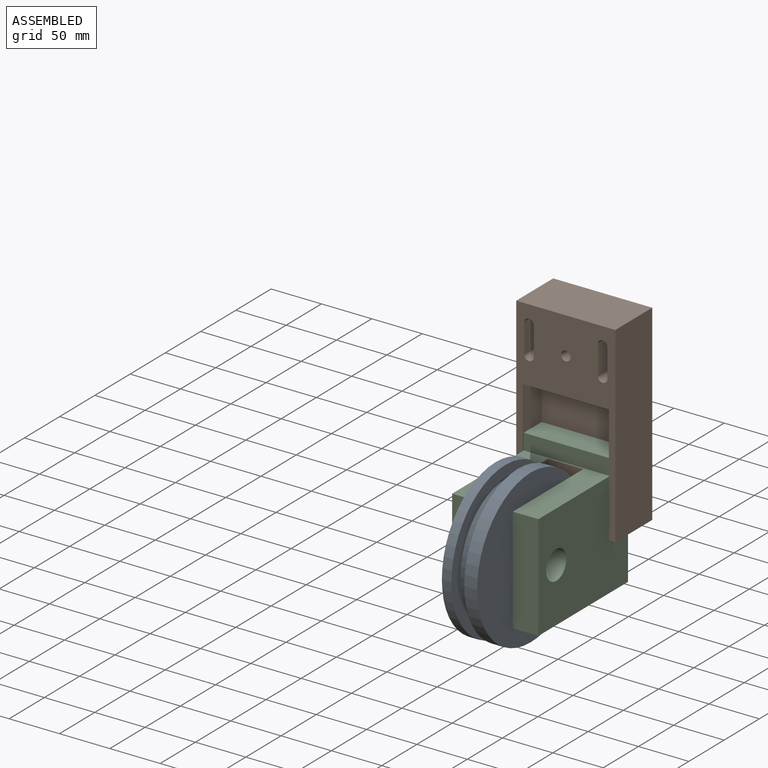
[diagram: assembled view]
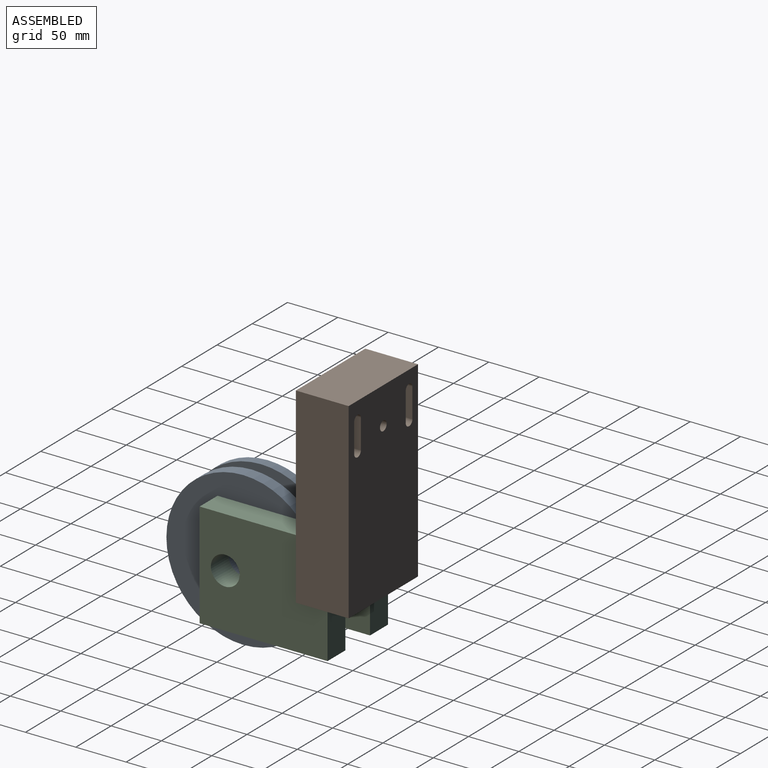
[diagram: assembled view, second angle]
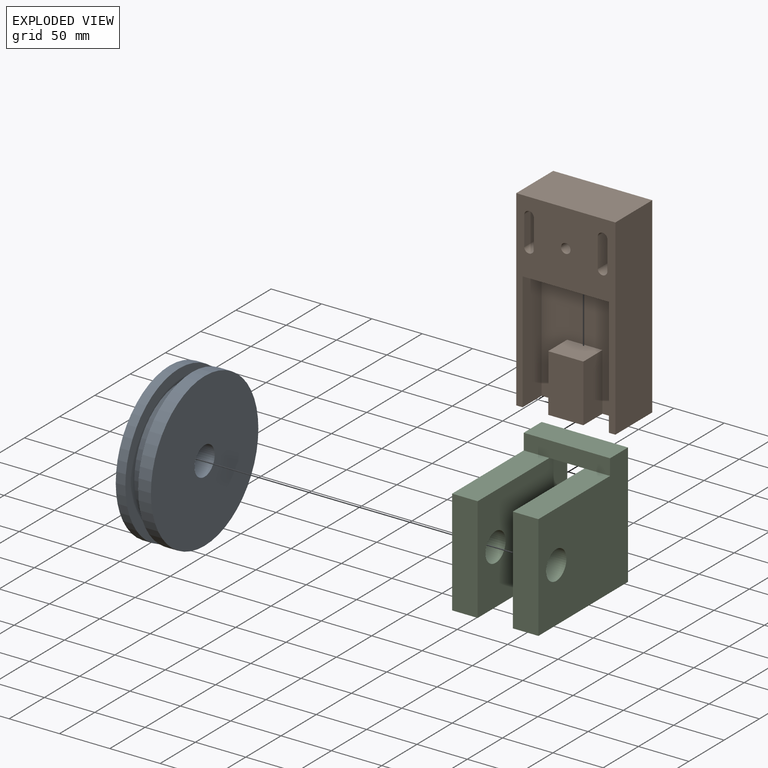
[diagram: exploded view]
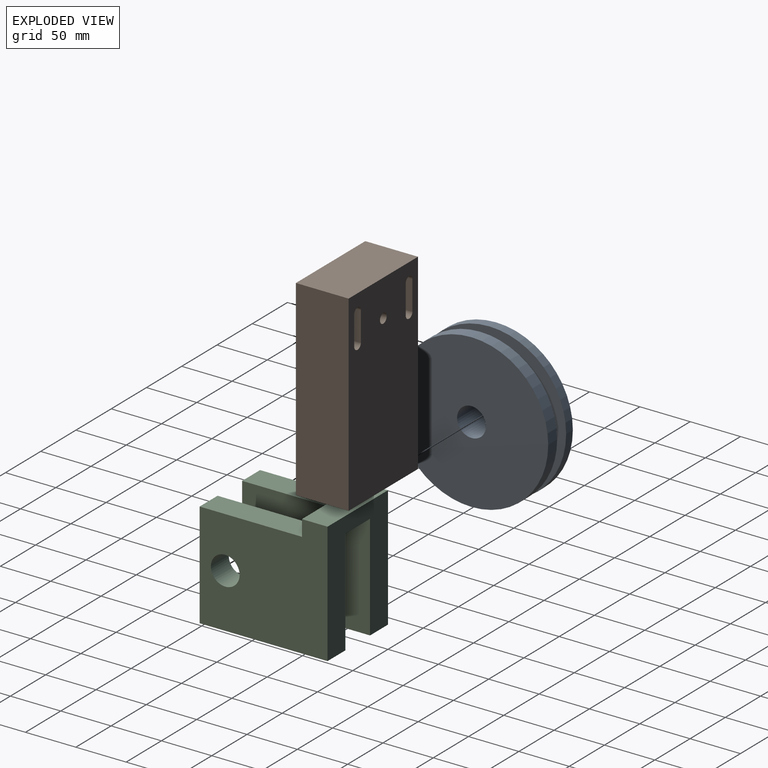
[diagram: exploded view, second angle]
ASSEMBLY  parts=3 mates=2
PART A: 8 faces, bbox 152.4x34.9x152.4 mm
  f0: cylinder r=76.2mm len=152.4mm, axis (0,1,0), area 6080.5mm2, adj f1,f2
  f1: plane 152.4x152.4mm, normal (0,-1,0), area 5573.8mm2, adj f0,f3
  f2: plane 152.4x152.4mm, normal (0,1,0), area 17600.2mm2, adj f0,f7
  f3: cylinder r=63.5mm len=127mm, axis (0,1,0), area 5067.1mm2, adj f1,f6
  f4: cylinder r=76.2mm len=152.4mm, axis (0,1,0), area 4560.4mm2, adj f5,f6
  f5: plane 152.4x152.4mm, normal (0,-1,0), area 17600.2mm2, adj f4,f7
  f6: plane 152.4x152.4mm, normal (0,1,0), area 5573.8mm2, adj f3,f4
  f7: cylinder r=14.29mm len=34.93mm, axis (0,1,0), area 3135.3mm2, adj f2,f5
PART B: 23 faces, bbox 98.4x52.4x190.5 mm
  f0: plane 57.15x26.99mm, normal (-1,0,0), area 1542.3mm2, adj f2,f4,f8,f21
  f1: plane 57.15x26.99mm, normal (1,0,0), area 1542.3mm2, adj f2,f4,f8,f21
  f2: plane 117.48x85.73mm, normal (0,1,0), area 8074.6mm2, adj f0,f1,f4,f9,f10,f11,f21
  f3: plane 190.5x52.39mm, normal (-1,0,0), area 9979.8mm2, adj f4,f6,f7,f12
  f4: plane 98.43x52.39mm, normal (0,0,-1), area 3785.3mm2, adj f0,f1,f2,f3,f5,f7,f8,f9
  f5: plane 190.5x52.39mm, normal (1,0,0), area 9979.8mm2, adj f4,f6,f7,f12
  f6: plane 98.43x52.39mm, normal (0,0,1), area 5156.2mm2, adj f3,f5,f7,f12
  f7: plane 190.5x98.43mm, normal (0,-1,0), area 17991.3mm2, adj f3,f4,f5,f6,f13,f14,f15,f16
  f8: plane 57.15x34.93mm, normal (0,1,0), area 1996mm2, adj f0,f1,f4,f21
  f9: plane 117.48x26.99mm, normal (-1,0,0), area 3170.4mm2, adj f2,f4,f11,f12
  f10: plane 117.48x26.99mm, normal (1,0,0), area 3170.4mm2, adj f2,f4,f11,f12
  f11: plane 85.73x26.99mm, normal (0,0,-1), area 2313.5mm2, adj f2,f9,f10,f12
  f12: plane 190.5x98.43mm, normal (0,1,0), area 7920.7mm2, adj f3,f4,f5,f6,f9,f10,f11,f13
  f13: plane 52.39x29.68mm, normal (1,0,0), area 1554.7mm2, adj f7,f12,f14,f16
  f14: cylinder r=4.8mm len=52.39mm, axis (0,1,0), area 728mm2, adj f7,f12,f13,f15
  f15: plane 52.39x29.68mm, normal (-1,0,0), area 1554.7mm2, adj f7,f12,f14,f16
  f16: cylinder r=4.8mm len=52.39mm, axis (0,1,0), area 728mm2, adj f7,f12,f13,f15
  f17: plane 52.39x29.49mm, normal (1,0,0), area 1544.7mm2, adj f7,f12,f18,f20
  f18: cylinder r=4.79mm len=52.39mm, axis (0,1,0), area 737.5mm2, adj f7,f12,f17,f19
  f19: plane 52.39x29.49mm, normal (-1,0,0), area 1544.7mm2, adj f7,f12,f18,f20
  f20: cylinder r=4.79mm len=52.39mm, axis (0,1,0), area 737.5mm2, adj f7,f12,f17,f19
  f21: plane 34.93x26.99mm, normal (0,0,1), area 942.5mm2, adj f0,f1,f2,f8
  f22: cylinder r=4.76mm len=52.39mm, axis (0,-1,0), area 1567.6mm2, adj f7,f12
PART C: 16 faces, bbox 127x85.7x120.7 mm
  f0: plane 101.6x25.4mm, normal (0,0,1), area 2580.6mm2, adj f1,f4,f5,f7
  f1: plane 104.78x25.4mm, normal (-1,0,0), area 2661.3mm2, adj f0,f2,f4,f5
  f2: plane 127x25.4mm, normal (0,0,-1), area 3225.8mm2, adj f1,f3,f4,f5
  f3: plane 120.65x85.73mm, normal (1,0,0), area 6683.5mm2, adj f2,f4,f5,f6,f8,f9,f10,f12
  f4: plane 127x104.78mm, normal (0,-1,0), area 12665.1mm2, adj f0,f1,f2,f3,f6,f15
  f5: plane 127x120.65mm, normal (0,1,0), area 13068.3mm2, adj f0,f1,f2,f3,f7,f9,f15
  f6: plane 34.93x25.4mm, normal (0,0,-1), area 887.1mm2, adj f3,f4,f7,f10
  f7: plane 85.73x15.88mm, normal (-1,0,0), area 1360.9mm2, adj f0,f5,f6,f8,f9,f13
  f8: plane 127x120.65mm, normal (0,-1,0), area 13068.3mm2, adj f3,f7,f9,f11,f12,f13,f14
  f9: plane 85.73x25.4mm, normal (0,0,1), area 2177.4mm2, adj f3,f5,f7,f8
  f10: plane 127x104.78mm, normal (0,1,0), area 12665.1mm2, adj f3,f6,f11,f12,f13,f14
  f11: plane 104.78x25.4mm, normal (-1,0,0), area 2661.3mm2, adj f8,f10,f12,f13
  f12: plane 127x25.4mm, normal (0,0,-1), area 3225.8mm2, adj f3,f8,f10,f11
  f13: plane 101.6x25.4mm, normal (0,0,1), area 2580.6mm2, adj f7,f8,f10,f11
  f14: cylinder r=14.29mm len=28.58mm, axis (0,1,0), area 2280.2mm2, adj f8,f10
  f15: cylinder r=14.29mm len=28.58mm, axis (0,1,0), area 2280.2mm2, adj f4,f5
PLACE A rot(axis=(0,0,-1),90deg) t=(19.59,-95.11,-71.3)mm
PLACE B rot(axis=(0,0,-1),180deg) t=(2.13,6.49,17.6)mm fixed
PLACE C rot(axis=(0,0,1),90deg) t=(-40.74,-57.01,-72.89)mm
MATE slider C.f6 <-> B.f21  axis (0,0,-1) through (2.13,6.49,-20.5)mm
MATE fastened A.f0 <-> C.f14  axis (1,0,0) through (19.59,-95.11,-71.3)mm
